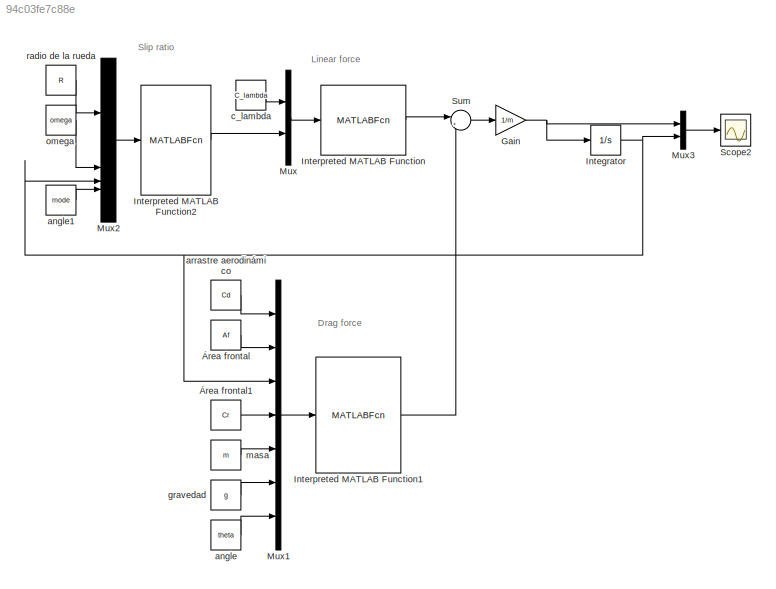
MODEL slx_94c03fe7c88e
KIND model
CONFIG AbsTol = auto
CONFIG EnableMultiTasking = off
CONFIG FixedStep = auto
CONFIG MaxStep = auto
CONFIG MinStep = auto
CONFIG RelTol = 1e-3
CONFIG SampleTimeConstraint = Unconstrained
CONFIG SolverName = VariableStepAuto
CONFIG StartTime = 0.0
CONFIG StopTime = 1
BLOCK [Gain] Gain
  Gain = 1/m
BLOCK [Integrator] Integrator
BLOCK [MATLABFcn] Interpreted MATLAB Function
  MATLABFcn = linear_force
  Output1D = off
BLOCK [MATLABFcn] Interpreted MATLAB Function1
  MATLABFcn = drag_force
  Output1D = off
BLOCK [MATLABFcn] Interpreted MATLAB Function2
  MATLABFcn = slip_ratio
  Output1D = off
BLOCK [Mux] Mux
  DisplayOption = bar
  Inputs = 2
BLOCK [Mux] Mux1
  DisplayOption = bar
  Inputs = 7
BLOCK [Mux] Mux2
  DisplayOption = bar
BLOCK [Mux] Mux3
  DisplayOption = bar
  Inputs = 2
BLOCK [Scope] Scope2
  Floating = off
  NumInputPorts = 1
  ScopeSpecificationString = Simulink.scopes.TimeScopeBlockCfg('CurrentConfiguration', extmgr.ConfigurationSet(extmgr.Configuration('Core','General UI',true,'FigureColor',[1 1 1]),extmgr.Configuration('Core','Source UI',true),extmgr.Configuration('Sources','WiredSimulink',true,'DataLoggingVariableName','ScopeData2'),extmgr.Configuration('Visuals','Time Domain',true,'SerializedDisplays',{struct('MinYLimReal','-5.89185','MaxYLi...<+1559ch>
BLOCK [Sum] Sum
  Inputs = |+-
BLOCK [Constant] angle
  Value = theta
  VectorParams1D = off
BLOCK [Constant] angle1
  Value = mode
BLOCK [Constant] arrastre aerodinámico
  Value = Cd
  VectorParams1D = off
BLOCK [Constant] c_lambda
  Value = C_lambda
BLOCK [Constant] gravedad
  Value = g
  VectorParams1D = off
BLOCK [Constant] masa
  Value = m
  VectorParams1D = off
BLOCK [Constant] omega
  Value = omega
  VectorParams1D = off
BLOCK [Constant] radio de la rueda
  Value = R
  VectorParams1D = off
BLOCK [Constant] Área frontal
  Value = Af
  VectorParams1D = off
BLOCK [Constant] Área frontal1
  Value = Cr
  VectorParams1D = off
ANNOTATION (root): Drag force
ANNOTATION (root): Linear force
ANNOTATION (root): Slip ratio
NET Gain:1 -> Integrator:1, Mux3:1
NET Integrator:1 -> Mux1:3, Mux2:3, Mux3:2
LINE Interpreted MATLAB Function1:1 -> Sum:2
LINE Interpreted MATLAB Function2:1 -> Mux:2
LINE Interpreted MATLAB Function:1 -> Sum:1
LINE Mux1:1 -> Interpreted MATLAB Function1:1
LINE Mux2:1 -> Interpreted MATLAB Function2:1
LINE Mux3:1 -> Scope2:1
LINE Mux:1 -> Interpreted MATLAB Function:1
LINE Sum:1 -> Gain:1
LINE angle1:1 -> Mux2:4
LINE angle:1 -> Mux1:7
LINE arrastre aerodinámico:1 -> Mux1:1
LINE c_lambda:1 -> Mux:1
LINE gravedad:1 -> Mux1:6
LINE masa:1 -> Mux1:5
LINE omega:1 -> Mux2:2
LINE radio de la rueda:1 -> Mux2:1
LINE Área frontal1:1 -> Mux1:4
LINE Área frontal:1 -> Mux1:2
note: NET lines group one-source signal fan-out (src -> all destinations, sorted); 1:1 wires keep LINE
